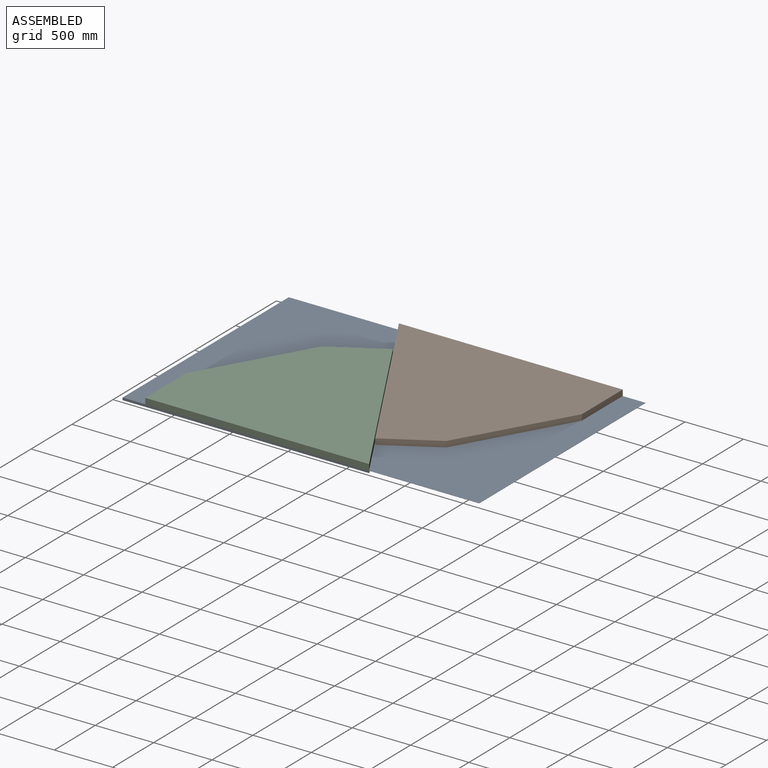
[diagram: assembled view]
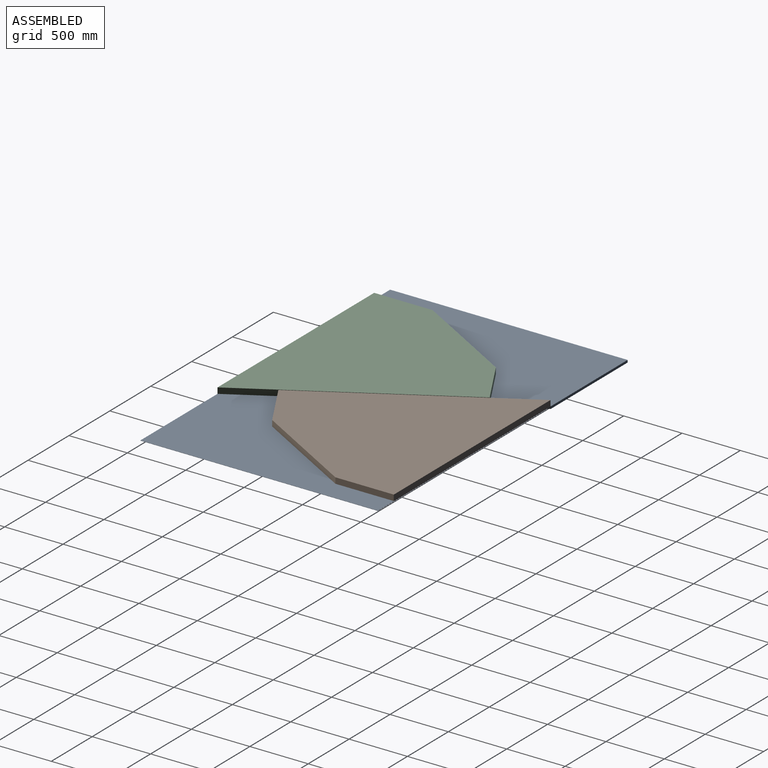
[diagram: assembled view, second angle]
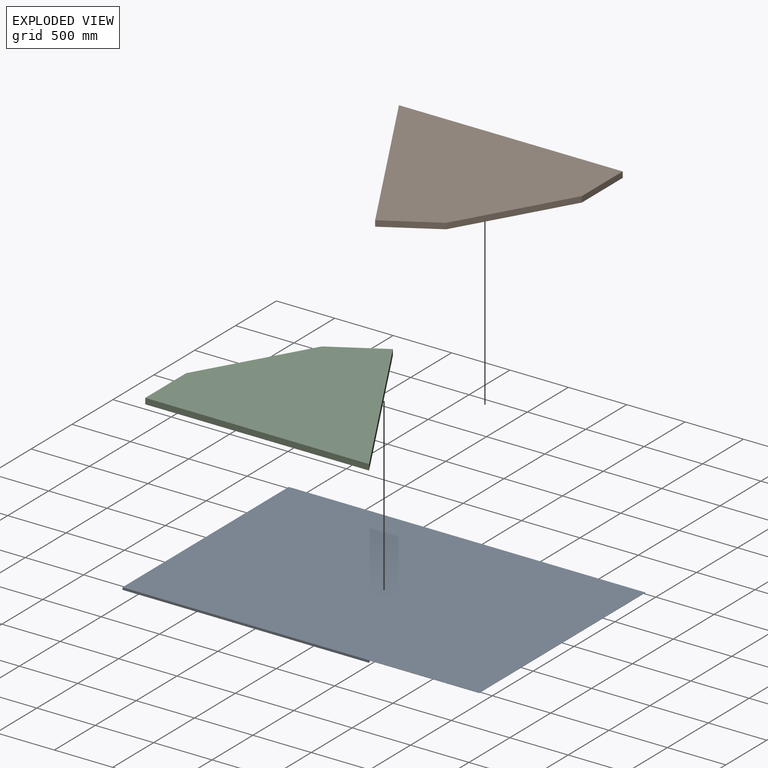
[diagram: exploded view]
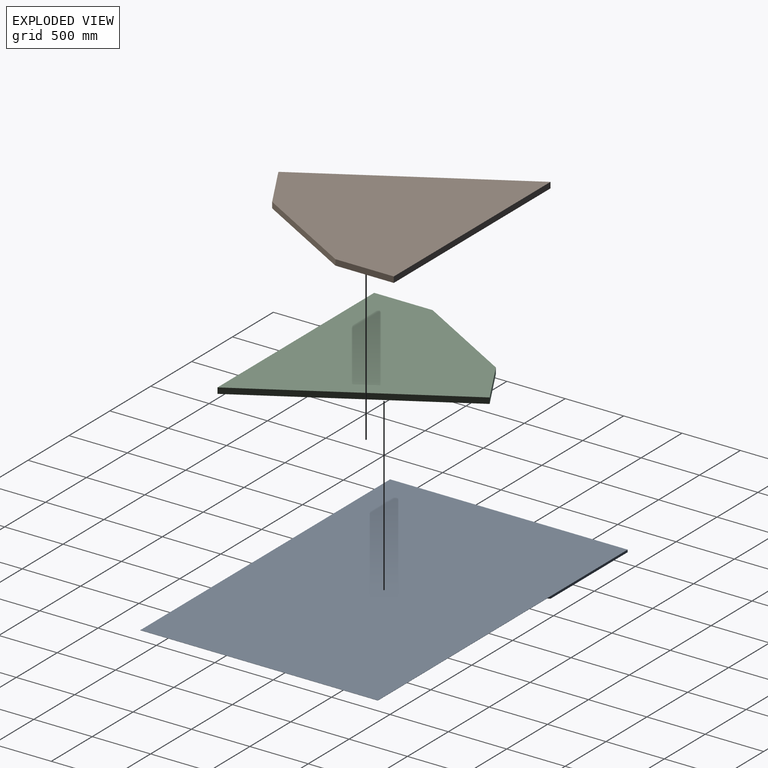
[diagram: exploded view, second angle]
ASSEMBLY  parts=3 mates=2
PART A: 8 faces, bbox 3055x2034x20 mm
  f0: plane 2114x2034mm, normal (0,0,-1), area 3106935mm2, adj f2,f3,f4,f6
  f1: plane 2034x20mm, normal (-1,0,0), area 40680mm2, adj f2,f4,f5,f7
  f2: plane 3055x20mm, normal (0,-1,0), area 44162mm2, adj f0,f1,f3,f5,f6,f7
  f3: plane 2034x2mm, normal (1,0,0), area 4068mm2, adj f0,f2,f4,f5
  f4: plane 3055x20mm, normal (0,1,0), area 23048mm2, adj f0,f1,f3,f5,f6,f7
  f5: plane 3055x2034mm, normal (0,0,1), area 6213870mm2, adj f1,f2,f3,f4
  f6: plane 2034x1173mm, normal (0.87,0.5,0), area 42263.9mm2, adj f0,f2,f4,f7
  f7: plane 2114x2034mm, normal (0,0,-1), area 3106935mm2, adj f1,f2,f4,f6
PART B: 7 faces, bbox 1916.7x1659.8x50 mm
  f0: plane 500.18x50mm, normal (-1,0,0), area 25009mm2, adj f1,f4,f5,f6
  f1: plane 1916.7x50mm, normal (0,-1,0), area 95834.9mm2, adj f0,f2,f5,f6
  f2: plane 1659.77x958.27mm, normal (0.87,0.5,0), area 95827mm2, adj f1,f3,f5,f6
  f3: plane 433.25x249.95mm, normal (-0.5,0.87,0), area 25009mm2, adj f2,f4,f5,f6
  f4: plane 909.64x525.18mm, normal (-0.87,0.5,0), area 52518mm2, adj f0,f3,f5,f6
  f5: plane 1916.7x1659.77mm, normal (0,0,1), area 1961749.9mm2, adj f0,f1,f2,f3,f4
  f6: plane 1916.7x1659.77mm, normal (0,0,-1), area 1961749.9mm2, adj f0,f1,f2,f3,f4
PART C: same geometry as B
PLACE A rot(axis=(0,0,1),0deg) t=(-537.99,-627.66,-370.44)mm
PLACE B rot(axis=(0,0,-1),180deg) t=(-1165.49,414.34,-368.44)mm
PLACE C rot(axis=(0,0,1),0deg) t=(89.51,-1669.66,-368.44)mm
MATE fastened A.f5 <-> B.f6  axis (0,0,1) through (794.51,389.34,-368.44)mm
MATE fastened A.f5 <-> C.f6  axis (0,0,1) through (-1870.49,-1644.66,-368.44)mm
